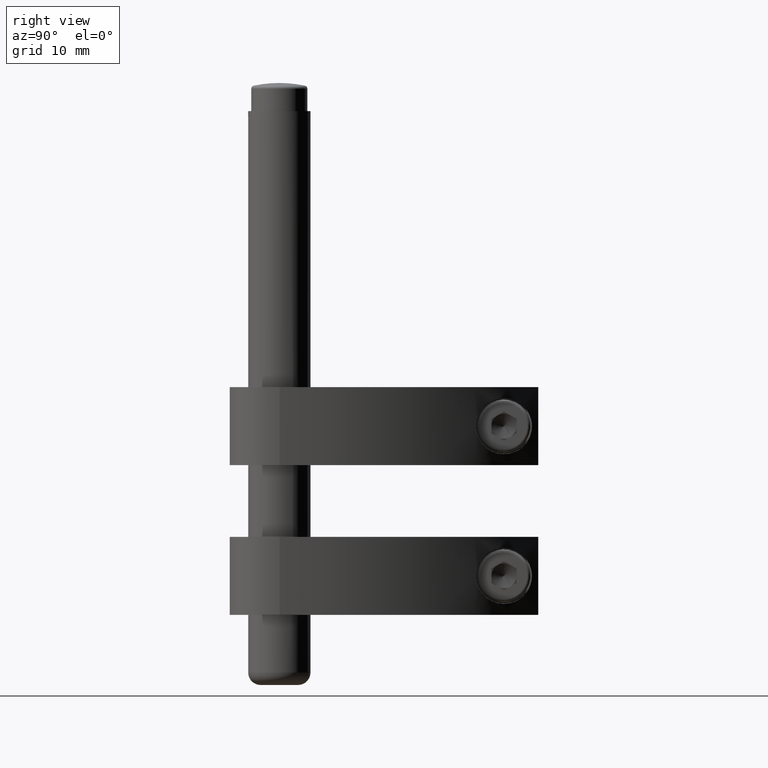
[diagram: clean part render]
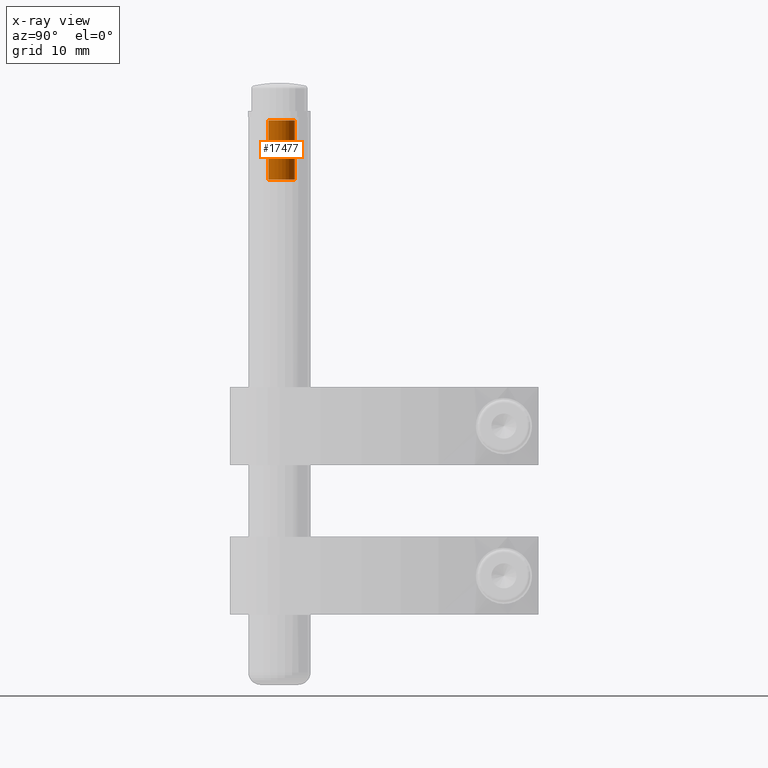
[diagram: x-ray — body ghosted, one internal face saturated and labeled with its STEP entity id]
A machine part, right view, then the same camera in x-ray: the body is ghosted and one INTERNAL B-rep face — a face not visible from any outside direction — is saturated and labeled: STEP entity #17477.
In plain terms, the highlighted cylindrical surface (edge-blend (fillet) strip) has radius 2.5 mm, axis along (0, 0, 1).
Its self-contained STEP definition (entity closure, byte-faithful):
#13 = EDGE_CURVE ( 'NONE', #4623, #516, #19, .T. ) ;
#19 = LINE ( 'NONE', #1176, #18502 ) ;
#102 = DIRECTION ( 'NONE',  ( 0.0000000000000000000, 0.0000000000000000000, -1.000000000000000000 ) ) ;
#140 = B_SPLINE_CURVE_WITH_KNOTS ( 'NONE', 3,
 ( #5299, #18702, #8612, #20378 ),
 .UNSPECIFIED., .F., .F.,
 ( 4, 4 ),
 ( 0.0003046107348551110900, 0.0003702883360055615700 ),
 .UNSPECIFIED. ) ;
#200 = CARTESIAN_POINT ( 'NONE',  ( -2.499999999999994200, 3.035766082959412400E-015, -45.50000000000000000 ) ) ;
#209 = EDGE_CURVE ( 'NONE', #6033, #12514, #21378, .T. ) ;
#243 = VECTOR ( 'NONE', #10513, 1000.000000000000000 ) ;
#310 = VERTEX_POINT ( 'NONE', #14400 ) ;
#457 = VERTEX_POINT ( 'NONE', #14902 ) ;
#502 = CARTESIAN_POINT ( 'NONE',  ( -2.499999999999994200, 3.349221213002706900E-015, -41.47419524895191500 ) ) ;
#506 = ORIENTED_EDGE ( 'NONE', *, *, #10522, .F. ) ;
#516 = VERTEX_POINT ( 'NONE', #11889 ) ;
#540 = EDGE_CURVE ( 'NONE', #10337, #9047, #2591, .T. ) ;
#557 = CARTESIAN_POINT ( 'NONE',  ( -2.499999999999994200, -0.009522370386900999600, -42.15720881813085400 ) ) ;
#598 = DIRECTION ( 'NONE',  ( 0.0000000000000000000, 0.0000000000000000000, -1.000000000000000000 ) ) ;
#689 = ORIENTED_EDGE ( 'NONE', *, *, #6411, .F. ) ;
#719 = VERTEX_POINT ( 'NONE', #3350 ) ;
#723 = EDGE_CURVE ( 'NONE', #20716, #734, #8478, .T. ) ;
#734 = VERTEX_POINT ( 'NONE', #18777 ) ;
#744 = DIRECTION ( 'NONE',  ( 0.0000000000000000000, 0.0000000000000000000, -1.000000000000000000 ) ) ;
#780 = VERTEX_POINT ( 'NONE', #12317 ) ;
#874 = LINE ( 'NONE', #1883, #13092 ) ;
#917 = VECTOR ( 'NONE', #102, 1000.000000000000000 ) ;
#1079 = CARTESIAN_POINT ( 'NONE',  ( 0.0000000000000000000, 3.035766082959412400E-015, -45.00000000000000000 ) ) ;
#1128 = ORIENTED_EDGE ( 'NONE', *, *, #21351, .F. ) ;
#1141 = VERTEX_POINT ( 'NONE', #13106 ) ;
#1176 = CARTESIAN_POINT ( 'NONE',  ( -2.499999999999994200, 3.035766082959412400E-015, -45.50000000000000000 ) ) ;
#1184 = EDGE_CURVE ( 'NONE', #18648, #457, #9216, .T. ) ;
#1200 = DIRECTION ( 'NONE',  ( 0.0000000000000000000, 0.0000000000000000000, -1.000000000000000000 ) ) ;
#1217 = DIRECTION ( 'NONE',  ( 0.0000000000000000000, 0.0000000000000000000, -1.000000000000000000 ) ) ;
#1267 = CARTESIAN_POINT ( 'NONE',  ( -2.499999999999995100, 0.0000000000000000000, -36.73239850427349800 ) ) ;
#1297 = CARTESIAN_POINT ( 'NONE',  ( -2.499999999999994200, 3.035766082959412400E-015, -45.50000000000000000 ) ) ;
#1313 = CARTESIAN_POINT ( 'NONE',  ( -2.499999999999994200, 3.035766082959412400E-015, -45.50000000000000000 ) ) ;
#1375 = CARTESIAN_POINT ( 'NONE',  ( -2.499964940134939500, -0.01324399200380717500, -43.69543661422804300 ) ) ;
#1440 = CARTESIAN_POINT ( 'NONE',  ( -2.499963179563017900, -0.01356837606837505200, -43.67315287793802300 ) ) ;
#1482 = VERTEX_POINT ( 'NONE', #18952 ) ;
#1511 = CARTESIAN_POINT ( 'NONE',  ( -2.499963179563017900, -0.01356837606837505200, -40.59005742521367900 ) ) ;
#1585 = CARTESIAN_POINT ( 'NONE',  ( -2.499999999999995100, -4.336808689942017700E-016, -39.33752670940171500 ) ) ;
#1588 = CARTESIAN_POINT ( 'NONE',  ( -2.499990794941592000, -0.006784188034182972400, -37.20506560496794900 ) ) ;
#1613 = CARTESIAN_POINT ( 'NONE',  ( 0.0000000000000000000, -1.734723475976807100E-015, -35.50000000000000700 ) ) ;
#1684 = DIRECTION ( 'NONE',  ( 0.0000000000000000000, 0.0000000000000000000, -1.000000000000000000 ) ) ;
#1693 = LINE ( 'NONE', #15242, #9366 ) ;
#1694 = B_SPLINE_CURVE_WITH_KNOTS ( 'NONE', 3,
 ( #13812, #16951, #6131, #1511 ),
 .UNSPECIFIED., .F., .F.,
 ( 4, 4 ),
 ( 0.0001839985656280152600, 0.0002508744092485979500 ),
 .UNSPECIFIED. ) ;
#1821 = VECTOR ( 'NONE', #18046, 1000.000000000000000 ) ;
#1848 = CARTESIAN_POINT ( 'NONE',  ( -2.499999999999995100, 0.0000000000000000000, -37.53971688034188500 ) ) ;
#1883 = CARTESIAN_POINT ( 'NONE',  ( -2.499999999999995100, -4.336808689942017700E-016, -45.50000000000000000 ) ) ;
#1885 = CARTESIAN_POINT ( 'NONE',  ( -2.499963179563017900, -0.01356837606837505200, -41.39578575721153400 ) ) ;
#1907 = AXIS2_PLACEMENT_3D ( 'NONE', #7401, #5997, #11075 ) ;
#1913 = ORIENTED_EDGE ( 'NONE', *, *, #16458, .F. ) ;
#2067 = ORIENTED_EDGE ( 'NONE', *, *, #6248, .F. ) ;
#2212 = LINE ( 'NONE', #5804, #5144 ) ;
#2243 = CARTESIAN_POINT ( 'NONE',  ( 2.499999999999994200, 3.341927782746249900E-015, -45.00000000000000000 ) ) ;
#2339 = CARTESIAN_POINT ( 'NONE',  ( -2.499999999999994200, -1.212853771679223800E-013, -41.05118364614948200 ) ) ;
#2513 = CARTESIAN_POINT ( 'NONE',  ( -2.499999999999994200, 5.293955920339377100E-016, -37.78252731923628000 ) ) ;
#2547 = CARTESIAN_POINT ( 'NONE',  ( -2.499999999999995100, -4.336808689942017700E-016, -43.38768696581196600 ) ) ;
#2591 = LINE ( 'NONE', #15114, #19995 ) ;
#2674 = CARTESIAN_POINT ( 'NONE',  ( -2.499999999999994200, 3.349221213002706900E-015, -41.47419524895191500 ) ) ;
#2716 = VECTOR ( 'NONE', #16861, 1000.000000000000000 ) ;
#2779 = VERTEX_POINT ( 'NONE', #13361 ) ;
#2799 = LINE ( 'NONE', #21576, #12359 ) ;
#2875 = LINE ( 'NONE', #10721, #15288 ) ;
#3018 = ORIENTED_EDGE ( 'NONE', *, *, #4851, .F. ) ;
#3082 = VERTEX_POINT ( 'NONE', #6669 ) ;
#3222 = CIRCLE ( 'NONE', #6622, 2.499999999999994200 ) ;
#3243 = ORIENTED_EDGE ( 'NONE', *, *, #1184, .F. ) ;
#3273 = CARTESIAN_POINT ( 'NONE',  ( -2.499999999999994200, -0.009918322737244992700, -41.34125796635913000 ) ) ;
#3309 = EDGE_CURVE ( 'NONE', #11755, #18170, #2799, .T. ) ;
#3324 = ORIENTED_EDGE ( 'NONE', *, *, #11339, .F. ) ;
#3343 = CARTESIAN_POINT ( 'NONE',  ( -2.499999999999995600, -2.362216071214634300E-015, -40.65752391552910400 ) ) ;
#3350 = CARTESIAN_POINT ( 'NONE',  ( 2.499999999999998200, 3.341927782746257800E-015, -35.50000000000000700 ) ) ;
#3487 = ORIENTED_EDGE ( 'NONE', *, *, #11972, .F. ) ;
#3518 = VERTEX_POINT ( 'NONE', #7220 ) ;
#3557 = VERTEX_POINT ( 'NONE', #16801 ) ;
#3577 = CARTESIAN_POINT ( 'NONE',  ( -2.499999999999993800, -0.004620592154542367400, -39.06077576060531700 ) ) ;
#3617 = VERTEX_POINT ( 'NONE', #6940 ) ;
#3628 = VECTOR ( 'NONE', #1217, 1000.000000000000000 ) ;
#3687 = ORIENTED_EDGE ( 'NONE', *, *, #20741, .F. ) ;
#3690 = CARTESIAN_POINT ( 'NONE',  ( -2.499999999999994200, 7.695294325805318600E-015, -40.52407171874975200 ) ) ;
#3838 = LINE ( 'NONE', #16587, #21241 ) ;
#3919 = VERTEX_POINT ( 'NONE', #2339 ) ;
#3956 = DIRECTION ( 'NONE',  ( 0.0000000000000000000, 0.0000000000000000000, -1.000000000000000000 ) ) ;
#3974 = B_SPLINE_CURVE_WITH_KNOTS ( 'NONE', 3,
 ( #7526, #17532, #17965, #4564 ),
 .UNSPECIFIED., .F., .F.,
 ( 4, 4 ),
 ( 0.0002614185422788305900, 0.0003150809736663434900 ),
 .UNSPECIFIED. ) ;
#3976 = LINE ( 'NONE', #11547, #15856 ) ;
#3999 = LINE ( 'NONE', #18414, #4535 ) ;
#4024 = EDGE_CURVE ( 'NONE', #21377, #4670, #6594, .T. ) ;
#4056 = CARTESIAN_POINT ( 'NONE',  ( -2.499999999999994200, 1.067876941210113800E-011, -40.92238010114189700 ) ) ;
#4132 = CARTESIAN_POINT ( 'NONE',  ( -2.500000000000033800, -0.009285707656518307400, -40.94240176013804000 ) ) ;
#4183 = DIRECTION ( 'NONE',  ( -0.0000000000000000000, -0.0000000000000000000, -1.000000000000000000 ) ) ;
#4220 = CARTESIAN_POINT ( 'NONE',  ( -2.499999999999995100, -4.336808689942017700E-016, -39.83277243589741800 ) ) ;
#4300 = CARTESIAN_POINT ( 'NONE',  ( -2.499999999999995100, 0.0000000000000000000, -38.19778311965810500 ) ) ;
#4305 = CARTESIAN_POINT ( 'NONE',  ( -2.499999999999995100, 0.0000000000000000000, -37.49222756410255600 ) ) ;
#4313 = EDGE_CURVE ( 'NONE', #719, #21599, #17560, .T. ) ;
#4324 = VECTOR ( 'NONE', #744, 1000.000000000000000 ) ;
#4414 = EDGE_CURVE ( 'NONE', #16091, #7554, #20701, .T. ) ;
#4482 = DIRECTION ( 'NONE',  ( 0.0000000000000000000, 0.0000000000000000000, -1.000000000000000000 ) ) ;
#4487 = ORIENTED_EDGE ( 'NONE', *, *, #11242, .F. ) ;
#4521 = EDGE_CURVE ( 'NONE', #13655, #3518, #15711, .T. ) ;
#4535 = VECTOR ( 'NONE', #15110, 1000.000000000000000 ) ;
#4564 = CARTESIAN_POINT ( 'NONE',  ( -2.499990794941592000, -0.006784188034186875600, -39.02354600694443600 ) ) ;
#4623 = VERTEX_POINT ( 'NONE', #17798 ) ;
#4660 = VECTOR ( 'NONE', #18638, 1000.000000000000000 ) ;
#4670 = VERTEX_POINT ( 'NONE', #19992 ) ;
#4685 = DIRECTION ( 'NONE',  ( 0.0000000000000000000, 0.0000000000000000000, -1.000000000000000000 ) ) ;
#4704 = CARTESIAN_POINT ( 'NONE',  ( -2.499967689135853100, -0.01273749063406488800, -40.61323309425962000 ) ) ;
#4723 = DIRECTION ( 'NONE',  ( 0.0000000000000000000, 0.0000000000000000000, -1.000000000000000000 ) ) ;
#4851 = EDGE_CURVE ( 'NONE', #5577, #21377, #16648, .T. ) ;
#4883 = DIRECTION ( 'NONE',  ( 0.0000000000000000000, 0.0000000000000000000, -1.000000000000000000 ) ) ;
#5064 = ORIENTED_EDGE ( 'NONE', *, *, #4521, .F. ) ;
#5082 = CARTESIAN_POINT ( 'NONE',  ( -2.499999999999992900, -5.301367458627846300E-016, -41.31621453369732700 ) ) ;
#5117 = CARTESIAN_POINT ( 'NONE',  ( -2.499999999999994200, 1.593374852903745700E-015, -42.28185516488797200 ) ) ;
#5144 = VECTOR ( 'NONE', #12456, 1000.000000000000000 ) ;
#5151 = CARTESIAN_POINT ( 'NONE',  ( -2.499999999999995600, -2.362216071214634300E-015, -40.65752391552910400 ) ) ;
#5211 = EDGE_CURVE ( 'NONE', #14714, #12902, #17197, .T. ) ;
#5299 = CARTESIAN_POINT ( 'NONE',  ( -2.499999999999994200, 7.158025244889296900E-012, -43.60891856268793300 ) ) ;
#5369 = VERTEX_POINT ( 'NONE', #8980 ) ;
#5374 = VECTOR ( 'NONE', #7152, 1000.000000000000000 ) ;
#5396 = VECTOR ( 'NONE', #7752, 1000.000000000000000 ) ;
#5400 = VERTEX_POINT ( 'NONE', #12029 ) ;
#5464 = CARTESIAN_POINT ( 'NONE',  ( -2.499963179563017900, -0.01356837606837505200, -41.39578575721153400 ) ) ;
#5548 = VECTOR ( 'NONE', #1200, 1000.000000000000000 ) ;
#5577 = VERTEX_POINT ( 'NONE', #18467 ) ;
#5593 = CARTESIAN_POINT ( 'NONE',  ( -2.499963179563017900, -0.01356837606837505200, -40.98661441639957600 ) ) ;
#5654 = B_SPLINE_CURVE_WITH_KNOTS ( 'NONE', 3,
 ( #10580, #8818, #14073, #15744 ),
 .UNSPECIFIED., .F., .F.,
 ( 4, 4 ),
 ( 0.0002614185422788869700, 0.0003150809736664003500 ),
 .UNSPECIFIED. ) ;
#5665 = DIRECTION ( 'NONE',  ( 0.0000000000000000000, 0.0000000000000000000, -1.000000000000000000 ) ) ;
#5705 = CARTESIAN_POINT ( 'NONE',  ( -2.499965219639902700, -0.01319249342256251200, -40.96436549188496200 ) ) ;
#5728 = EDGE_CURVE ( 'NONE', #6075, #8855, #2212, .T. ) ;
#5804 = CARTESIAN_POINT ( 'NONE',  ( -2.499999999999994200, 3.035766082959412400E-015, -45.50000000000000000 ) ) ;
#5813 = CARTESIAN_POINT ( 'NONE',  ( -2.499999999999995100, -0.008918106749605822200, -41.03087227328478500 ) ) ;
#5965 = VERTEX_POINT ( 'NONE', #14851 ) ;
#5967 = DIRECTION ( 'NONE',  ( 1.000000000000000000, 0.0000000000000000000, 0.0000000000000000000 ) ) ;
#5997 = DIRECTION ( 'NONE',  ( 0.0000000000000000000, 0.0000000000000000000, -1.000000000000000000 ) ) ;
#6019 = LINE ( 'NONE', #1297, #3628 ) ;
#6033 = VERTEX_POINT ( 'NONE', #8433 ) ;
#6075 = VERTEX_POINT ( 'NONE', #1848 ) ;
#6105 = CARTESIAN_POINT ( 'NONE',  ( -2.499999999999994200, -1.233645783556356700E-013, -43.73772210768793700 ) ) ;
#6131 = CARTESIAN_POINT ( 'NONE',  ( -2.499967185172819100, -0.01283034544752377300, -40.56731257729942500 ) ) ;
#6170 = DIRECTION ( 'NONE',  ( 0.0000000000000000000, 0.0000000000000000000, -1.000000000000000000 ) ) ;
#6178 = LINE ( 'NONE', #15806, #4324 ) ;
#6189 = ORIENTED_EDGE ( 'NONE', *, *, #21419, .F. ) ;
#6248 = EDGE_CURVE ( 'NONE', #5369, #4623, #14366, .T. ) ;
#6411 = EDGE_CURVE ( 'NONE', #18134, #3082, #7230, .T. ) ;
#6434 = LINE ( 'NONE', #9499, #20626 ) ;
#6517 = ORIENTED_EDGE ( 'NONE', *, *, #4024, .F. ) ;
#6527 = ORIENTED_EDGE ( 'NONE', *, *, #10400, .F. ) ;
#6564 = ORIENTED_EDGE ( 'NONE', *, *, #10774, .F. ) ;
#6594 = B_SPLINE_CURVE_WITH_KNOTS ( 'NONE', 3,
 ( #6895, #20503, #20576, #18682 ),
 .UNSPECIFIED., .F., .F.,
 ( 4, 4 ),
 ( 0.0000000000000000000, 5.769437206171376800E-005 ),
 .UNSPECIFIED. ) ;
#6611 = CARTESIAN_POINT ( 'NONE',  ( -2.499999999999994200, 3.035766082959412400E-015, -45.50000000000000000 ) ) ;
#6622 = AXIS2_PLACEMENT_3D ( 'NONE', #1079, #4183, #5967 ) ;
#6625 = VECTOR ( 'NONE', #1684, 1000.000000000000000 ) ;
#6669 = CARTESIAN_POINT ( 'NONE',  ( -2.499999999999994200, 3.184738002557762500E-015, -38.96976022521917600 ) ) ;
#6843 = DIRECTION ( 'NONE',  ( 0.0000000000000000000, 0.0000000000000000000, -1.000000000000000000 ) ) ;
#6884 = LINE ( 'NONE', #21752, #18487 ) ;
#6895 = CARTESIAN_POINT ( 'NONE',  ( -2.499990794941592000, -0.006784188034182972400, -37.20506560496794900 ) ) ;
#6940 = CARTESIAN_POINT ( 'NONE',  ( -2.499999999999995100, -4.336808689942017700E-016, -39.78528311965811100 ) ) ;
#7021 = VECTOR ( 'NONE', #3956, 1000.000000000000000 ) ;
#7122 = ORIENTED_EDGE ( 'NONE', *, *, #7239, .T. ) ;
#7139 = EDGE_CURVE ( 'NONE', #3557, #11755, #15115, .T. ) ;
#7152 = DIRECTION ( 'NONE',  ( 0.0000000000000000000, 0.0000000000000000000, -1.000000000000000000 ) ) ;
#7176 = DIRECTION ( 'NONE',  ( 0.0000000000000000000, 0.0000000000000000000, -1.000000000000000000 ) ) ;
#7220 = CARTESIAN_POINT ( 'NONE',  ( -2.499999999999995100, 0.0000000000000000000, -37.99425747863248400 ) ) ;
#7230 = LINE ( 'NONE', #15038, #2716 ) ;
#7239 = EDGE_CURVE ( 'NONE', #21599, #14370, #3222, .T. ) ;
#7276 = DIRECTION ( 'NONE',  ( 0.0000000000000000000, 0.0000000000000000000, -1.000000000000000000 ) ) ;
#7282 = CARTESIAN_POINT ( 'NONE',  ( -2.499966345133983300, -0.01298512197699818800, -42.18220646377363900 ) ) ;
#7286 = VERTEX_POINT ( 'NONE', #17730 ) ;
#7350 = CARTESIAN_POINT ( 'NONE',  ( -2.499999999999994200, 3.035766082959412400E-015, -45.50000000000000000 ) ) ;
#7401 = CARTESIAN_POINT ( 'NONE',  ( 0.0000000000000000000, 3.035766082959412400E-015, -45.50000000000000000 ) ) ;
#7504 = ORIENTED_EDGE ( 'NONE', *, *, #13843, .F. ) ;
#7514 = ORIENTED_EDGE ( 'NONE', *, *, #4313, .T. ) ;
#7526 = CARTESIAN_POINT ( 'NONE',  ( -2.499999999999994200, 3.184738002557762500E-015, -38.96976022521917600 ) ) ;
#7554 = VERTEX_POINT ( 'NONE', #3690 ) ;
#7598 = CARTESIAN_POINT ( 'NONE',  ( -2.499999999999995100, -4.336808689942017700E-016, -40.12449252136751500 ) ) ;
#7752 = DIRECTION ( 'NONE',  ( 0.0000000000000000000, 0.0000000000000000000, -1.000000000000000000 ) ) ;
#8000 = B_SPLINE_CURVE_WITH_KNOTS ( 'NONE', 3,
 ( #10039, #8430, #18744, #5117 ),
 .UNSPECIFIED., .F., .F.,
 ( 4, 4 ),
 ( 0.0000000000000000000, 7.575291422309023300E-005 ),
 .UNSPECIFIED. ) ;
#8001 = CARTESIAN_POINT ( 'NONE',  ( -2.499999999999994200, 3.035766082959412400E-015, -45.50000000000000000 ) ) ;
#8013 = EDGE_CURVE ( 'NONE', #1482, #8217, #3999, .T. ) ;
#8040 = ORIENTED_EDGE ( 'NONE', *, *, #3309, .F. ) ;
#8069 = LINE ( 'NONE', #17093, #20690 ) ;
#8157 = CARTESIAN_POINT ( 'NONE',  ( -2.499999999999995100, -4.336808689942017700E-016, -39.67673611111111100 ) ) ;
#8217 = VERTEX_POINT ( 'NONE', #10811 ) ;
#8300 = CARTESIAN_POINT ( 'NONE',  ( -2.499999999999994200, 1.593374852903745700E-015, -42.28185516488797200 ) ) ;
#8324 = CARTESIAN_POINT ( 'NONE',  ( -2.499999999999994200, -0.004620592154533447400, -37.87354285462239300 ) ) ;
#8373 = CARTESIAN_POINT ( 'NONE',  ( -2.499999999999994200, 4.297209899657879200E-015, -37.14856311026490900 ) ) ;
#8377 = ORIENTED_EDGE ( 'NONE', *, *, #15890, .F. ) ;
#8430 = CARTESIAN_POINT ( 'NONE',  ( -2.499967165707135400, -0.01283393198516483100, -42.23283201541143200 ) ) ;
#8433 = CARTESIAN_POINT ( 'NONE',  ( -2.499999999999995100, -4.336808689942017700E-016, -39.22897970085470800 ) ) ;
#8478 = B_SPLINE_CURVE_WITH_KNOTS ( 'NONE', 3,
 ( #16767, #3273, #18620, #1885 ),
 .UNSPECIFIED., .F., .F.,
 ( 4, 4 ),
 ( 0.0001890563724755993800, 0.0002695673465635340200 ),
 .UNSPECIFIED. ) ;
#8588 = B_SPLINE_CURVE_WITH_KNOTS ( 'NONE', 3,
 ( #9188, #557, #7282, #10590 ),
 .UNSPECIFIED., .F., .F.,
 ( 4, 4 ),
 ( 0.0001827985185036029800, 0.0002568959962801293400 ),
 .UNSPECIFIED. ) ;
#8609 = CARTESIAN_POINT ( 'NONE',  ( -2.499990794941592000, -0.006784188034186875600, -39.02354600694443600 ) ) ;
#8612 = CARTESIAN_POINT ( 'NONE',  ( -2.499965219639902700, -0.01319249342261411500, -43.65090395342625800 ) ) ;
#8795 = AXIS2_PLACEMENT_3D ( 'NONE', #1613, #13445, #16794 ) ;
#8818 = CARTESIAN_POINT ( 'NONE',  ( -2.499999999999994200, -0.004552398315329972200, -37.79991638520186800 ) ) ;
#8855 = VERTEX_POINT ( 'NONE', #2513 ) ;
#8892 = CARTESIAN_POINT ( 'NONE',  ( -2.499999999999994200, 3.035766082959412400E-015, -45.50000000000000000 ) ) ;
#8899 = DIRECTION ( 'NONE',  ( 0.0000000000000000000, 0.0000000000000000000, -1.000000000000000000 ) ) ;
#8980 = CARTESIAN_POINT ( 'NONE',  ( -2.499999999999995100, -4.336808689942017700E-016, -42.68213141025642400 ) ) ;
#9006 = ORIENTED_EDGE ( 'NONE', *, *, #7139, .F. ) ;
#9047 = VERTEX_POINT ( 'NONE', #14917 ) ;
#9066 = ORIENTED_EDGE ( 'NONE', *, *, #19593, .F. ) ;
#9140 = EDGE_CURVE ( 'NONE', #13757, #21859, #8000, .T. ) ;
#9188 = CARTESIAN_POINT ( 'NONE',  ( -2.499999999999995600, 4.886797770506075600E-015, -42.13398934905227100 ) ) ;
#9216 = LINE ( 'NONE', #1313, #1821 ) ;
#9366 = VECTOR ( 'NONE', #6843, 1000.000000000000000 ) ;
#9499 = CARTESIAN_POINT ( 'NONE',  ( -2.499999999999995100, -4.336808689942017700E-016, -45.50000000000000000 ) ) ;
#9503 = ORIENTED_EDGE ( 'NONE', *, *, #10036, .F. ) ;
#9580 = B_SPLINE_CURVE_WITH_KNOTS ( 'NONE', 3,
 ( #4056, #4132, #5705, #12507 ),
 .UNSPECIFIED., .F., .F.,
 ( 4, 4 ),
 ( 0.0003046107348468210600, 0.0003702883360055432400 ),
 .UNSPECIFIED. ) ;
#9818 = CARTESIAN_POINT ( 'NONE',  ( -2.499999999999994200, 3.035766082959412400E-015, -45.50000000000000000 ) ) ;
#9921 = ORIENTED_EDGE ( 'NONE', *, *, #10486, .F. ) ;
#10036 = EDGE_CURVE ( 'NONE', #734, #14288, #13576, .T. ) ;
#10039 = CARTESIAN_POINT ( 'NONE',  ( -2.499963179563017900, -0.01356837606837505200, -42.20734425080129200 ) ) ;
#10082 = CARTESIAN_POINT ( 'NONE',  ( -2.499999999999995100, -4.336808689942017700E-016, -38.67946047008545200 ) ) ;
#10111 = DIRECTION ( 'NONE',  ( 0.0000000000000000000, 0.0000000000000000000, -1.000000000000000000 ) ) ;
#10212 = VERTEX_POINT ( 'NONE', #2547 ) ;
#10220 = CARTESIAN_POINT ( 'NONE',  ( -2.499990794941592000, -0.006784188034182972400, -37.20506560496794900 ) ) ;
#10260 = CARTESIAN_POINT ( 'NONE',  ( -2.499999999999994200, -1.141262017581698300E-013, -37.89148832465268400 ) ) ;
#10281 = ORIENTED_EDGE ( 'NONE', *, *, #20356, .F. ) ;
#10337 = VERTEX_POINT ( 'NONE', #16985 ) ;
#10379 = CARTESIAN_POINT ( 'NONE',  ( -2.499999999999994200, 3.035766082959412400E-015, -45.50000000000000000 ) ) ;
#10394 = VECTOR ( 'NONE', #4685, 1000.000000000000000 ) ;
#10400 = EDGE_CURVE ( 'NONE', #19077, #14714, #140, .T. ) ;
#10448 = LINE ( 'NONE', #13630, #18351 ) ;
#10468 = CARTESIAN_POINT ( 'NONE',  ( -2.499963179563017900, -0.01356837606837505200, -42.20734425080129200 ) ) ;
#10486 = EDGE_CURVE ( 'NONE', #5400, #3919, #18122, .T. ) ;
#10513 = DIRECTION ( 'NONE',  ( 0.0000000000000000000, 0.0000000000000000000, -1.000000000000000000 ) ) ;
#10522 = EDGE_CURVE ( 'NONE', #21834, #3617, #2875, .T. ) ;
#10580 = CARTESIAN_POINT ( 'NONE',  ( -2.499999999999994200, 5.293955920339377100E-016, -37.78252731923628000 ) ) ;
#10590 = CARTESIAN_POINT ( 'NONE',  ( -2.499963179563017900, -0.01356837606837505200, -42.20734425080129200 ) ) ;
#10655 = EDGE_CURVE ( 'NONE', #17485, #7286, #13780, .T. ) ;
#10721 = CARTESIAN_POINT ( 'NONE',  ( -2.499999999999994200, 3.035766082959412400E-015, -45.50000000000000000 ) ) ;
#10774 = EDGE_CURVE ( 'NONE', #4670, #14789, #12444, .T. ) ;
#10811 = CARTESIAN_POINT ( 'NONE',  ( -2.499999999999995100, -4.336808689942017700E-016, -41.83410790598291100 ) ) ;
#10896 = ORIENTED_EDGE ( 'NONE', *, *, #4414, .F. ) ;
#11019 = B_SPLINE_CURVE_WITH_KNOTS ( 'NONE', 3,
 ( #8609, #13705, #3577, #11776 ),
 .UNSPECIFIED., .F., .F.,
 ( 4, 4 ),
 ( 0.0000000000000000000, 5.563878443950292200E-005 ),
 .UNSPECIFIED. ) ;
#11075 = DIRECTION ( 'NONE',  ( -1.000000000000000000, 0.0000000000000000000, 0.0000000000000000000 ) ) ;
#11175 = DIRECTION ( 'NONE',  ( 0.0000000000000000000, 0.0000000000000000000, -1.000000000000000000 ) ) ;
#11240 = EDGE_CURVE ( 'NONE', #21859, #5369, #14133, .T. ) ;
#11242 = EDGE_CURVE ( 'NONE', #2779, #18648, #19790, .T. ) ;
#11257 = VECTOR ( 'NONE', #12855, 1000.000000000000000 ) ;
#11339 = EDGE_CURVE ( 'NONE', #12060, #780, #11019, .T. ) ;
#11418 = CARTESIAN_POINT ( 'NONE',  ( -2.499999999999995100, 0.0000000000000000000, -36.68490918803419000 ) ) ;
#11547 = CARTESIAN_POINT ( 'NONE',  ( -2.499999999999995100, -4.336808689942017700E-016, -45.50000000000000000 ) ) ;
#11588 = CARTESIAN_POINT ( 'NONE',  ( -2.499990794941592000, -0.006784188034186875600, -39.02354600694443600 ) ) ;
#11606 = LINE ( 'NONE', #13373, #20823 ) ;
#11755 = VERTEX_POINT ( 'NONE', #11418 ) ;
#11776 = CARTESIAN_POINT ( 'NONE',  ( -2.499999999999994200, -1.166571362045656800E-013, -39.07872123063558700 ) ) ;
#11867 = CARTESIAN_POINT ( 'NONE',  ( -2.499999999999995100, -4.336808689942017700E-016, -39.62924679487179700 ) ) ;
#11889 = CARTESIAN_POINT ( 'NONE',  ( -2.499999999999995100, -4.336808689942017700E-016, -43.34019764957264400 ) ) ;
#11912 = ORIENTED_EDGE ( 'NONE', *, *, #8013, .F. ) ;
#11918 = LINE ( 'NONE', #10379, #13514 ) ;
#11972 = EDGE_CURVE ( 'NONE', #12514, #15867, #874, .T. ) ;
#12029 = CARTESIAN_POINT ( 'NONE',  ( -2.499963179563017900, -0.01356837606837505200, -40.98661441639957600 ) ) ;
#12060 = VERTEX_POINT ( 'NONE', #11588 ) ;
#12064 = ORIENTED_EDGE ( 'NONE', *, *, #20229, .F. ) ;
#12193 = VECTOR ( 'NONE', #8899, 1000.000000000000000 ) ;
#12317 = CARTESIAN_POINT ( 'NONE',  ( -2.499999999999994200, -1.166571362045656800E-013, -39.07872123063558700 ) ) ;
#12323 = CARTESIAN_POINT ( 'NONE',  ( -2.499999999999995100, -4.336808689942017700E-016, -45.50000000000000000 ) ) ;
#12359 = VECTOR ( 'NONE', #4723, 1000.000000000000000 ) ;
#12444 = LINE ( 'NONE', #6611, #5548 ) ;
#12456 = DIRECTION ( 'NONE',  ( 0.0000000000000000000, 0.0000000000000000000, -1.000000000000000000 ) ) ;
#12507 = CARTESIAN_POINT ( 'NONE',  ( -2.499963179563017900, -0.01356837606837505200, -40.98661441639957600 ) ) ;
#12514 = VERTEX_POINT ( 'NONE', #1585 ) ;
#12763 = CIRCLE ( 'NONE', #8795, 2.499999999999998200 ) ;
#12855 = DIRECTION ( 'NONE',  ( 0.0000000000000000000, 0.0000000000000000000, -1.000000000000000000 ) ) ;
#12902 = VERTEX_POINT ( 'NONE', #6105 ) ;
#12945 = EDGE_CURVE ( 'NONE', #10212, #19077, #19622, .T. ) ;
#13051 = EDGE_LOOP ( 'NONE', ( #17866, #7514, #7122, #16398, #16979, #6527, #21823, #3687, #18305, #2067, #20768, #13884, #18269, #16260, #11912, #21543, #9503, #16704, #18803, #9921, #19779, #3243, #4487, #20483, #10896, #12064, #15327, #20874, #506, #1913, #9066, #3487, #15364, #13328, #10281, #3324, #17608, #689, #14406, #19261, #13339, #15263, #8377, #19174, #6189, #5064, #1128, #17935, #18264, #7504, #6564, #6517, #3018, #16211, #8040, #9006 ) ) ;
#13092 = VECTOR ( 'NONE', #7276, 1000.000000000000000 ) ;
#13106 = CARTESIAN_POINT ( 'NONE',  ( -2.499999999999995100, -4.336808689942017700E-016, -38.41487713675212500 ) ) ;
#13214 = EDGE_CURVE ( 'NONE', #17701, #6033, #15131, .T. ) ;
#13250 = LINE ( 'NONE', #13539, #6625 ) ;
#13280 = EDGE_CURVE ( 'NONE', #5965, #20635, #6178, .T. ) ;
#13328 = ORIENTED_EDGE ( 'NONE', *, *, #13214, .F. ) ;
#13339 = ORIENTED_EDGE ( 'NONE', *, *, #18925, .F. ) ;
#13361 = CARTESIAN_POINT ( 'NONE',  ( -2.499963179563017900, -0.01356837606837505200, -40.59005742521367900 ) ) ;
#13373 = CARTESIAN_POINT ( 'NONE',  ( -2.499999999999995100, -4.336808689942017700E-016, -45.50000000000000000 ) ) ;
#13445 = DIRECTION ( 'NONE',  ( 0.0000000000000000000, 0.0000000000000000000, -1.000000000000000000 ) ) ;
#13480 = DIRECTION ( 'NONE',  ( 0.0000000000000000000, 0.0000000000000000000, -1.000000000000000000 ) ) ;
#13488 = EDGE_CURVE ( 'NONE', #12902, #14370, #21704, .T. ) ;
#13494 = CARTESIAN_POINT ( 'NONE',  ( -2.499999999999994200, -0.009090271957486094300, -40.63617191880388900 ) ) ;
#13514 = VECTOR ( 'NONE', #17452, 1000.000000000000000 ) ;
#13539 = CARTESIAN_POINT ( 'NONE',  ( -2.499999999999995100, -4.336808689942017700E-016, -45.50000000000000000 ) ) ;
#13576 = B_SPLINE_CURVE_WITH_KNOTS ( 'NONE', 3,
 ( #5464, #17388, #19027, #502 ),
 .UNSPECIFIED., .F., .F.,
 ( 4, 4 ),
 ( 0.0000000000000000000, 8.029867034703270700E-005 ),
 .UNSPECIFIED. ) ;
#13597 = EDGE_CURVE ( 'NONE', #719, #3557, #12763, .T. ) ;
#13630 = CARTESIAN_POINT ( 'NONE',  ( -2.499999999999994200, 3.035766082959412400E-015, -45.50000000000000000 ) ) ;
#13655 = VERTEX_POINT ( 'NONE', #10260 ) ;
#13705 = CARTESIAN_POINT ( 'NONE',  ( -2.499991970654527500, -0.006350934783916176700, -39.04213943671320000 ) ) ;
#13735 = DIRECTION ( 'NONE',  ( 0.0000000000000000000, 0.0000000000000000000, -1.000000000000000000 ) ) ;
#13738 = DIRECTION ( 'NONE',  ( 0.0000000000000000000, 0.0000000000000000000, -1.000000000000000000 ) ) ;
#13757 = VERTEX_POINT ( 'NONE', #10468 ) ;
#13780 = LINE ( 'NONE', #16319, #21369 ) ;
#13812 = CARTESIAN_POINT ( 'NONE',  ( -2.499999999999994200, 7.695294325805318600E-015, -40.52407171874975200 ) ) ;
#13842 = EDGE_CURVE ( 'NONE', #3082, #12060, #3974, .T. ) ;
#13843 = EDGE_CURVE ( 'NONE', #14789, #6075, #6434, .T. ) ;
#13884 = ORIENTED_EDGE ( 'NONE', *, *, #9140, .F. ) ;
#13970 = CYLINDRICAL_SURFACE ( 'NONE', #1907, 2.499999999999994200 ) ;
#13974 = CARTESIAN_POINT ( 'NONE',  ( -2.499999999999994200, 3.035766082959412400E-015, -45.50000000000000000 ) ) ;
#14068 = VERTEX_POINT ( 'NONE', #11867 ) ;
#14073 = CARTESIAN_POINT ( 'NONE',  ( -2.499992131738088700, -0.006291575076169171400, -37.81816989933788900 ) ) ;
#14100 = VECTOR ( 'NONE', #4883, 1000.000000000000000 ) ;
#14133 = LINE ( 'NONE', #20226, #17772 ) ;
#14224 = EDGE_CURVE ( 'NONE', #310, #13757, #8588, .T. ) ;
#14288 = VERTEX_POINT ( 'NONE', #2674 ) ;
#14366 = LINE ( 'NONE', #15864, #5396 ) ;
#14370 = VERTEX_POINT ( 'NONE', #21388 ) ;
#14400 = CARTESIAN_POINT ( 'NONE',  ( -2.499999999999995600, 4.886797770506075600E-015, -42.13398934905227100 ) ) ;
#14406 = ORIENTED_EDGE ( 'NONE', *, *, #15434, .F. ) ;
#14605 = VECTOR ( 'NONE', #598, 1000.000000000000000 ) ;
#14714 = VERTEX_POINT ( 'NONE', #16094 ) ;
#14789 = VERTEX_POINT ( 'NONE', #4305 ) ;
#14851 = CARTESIAN_POINT ( 'NONE',  ( -2.499999999999995100, -4.336808689942017700E-016, -38.46236645299144600 ) ) ;
#14889 = CARTESIAN_POINT ( 'NONE',  ( -2.499999999999993800, -0.008918106749577070800, -43.71741073482321100 ) ) ;
#14902 = CARTESIAN_POINT ( 'NONE',  ( -2.499999999999994200, 1.067876941210113800E-011, -40.92238010114189700 ) ) ;
#14917 = CARTESIAN_POINT ( 'NONE',  ( -2.499999999999995100, 0.0000000000000000000, -38.15029380341879100 ) ) ;
#14990 = EDGE_CURVE ( 'NONE', #14288, #1482, #11918, .T. ) ;
#15031 = CARTESIAN_POINT ( 'NONE',  ( -2.499990794941592000, -0.006784188034182972400, -37.83631310096154000 ) ) ;
#15038 = CARTESIAN_POINT ( 'NONE',  ( -2.499999999999994200, 3.035766082959412400E-015, -45.50000000000000000 ) ) ;
#15110 = DIRECTION ( 'NONE',  ( 0.0000000000000000000, 0.0000000000000000000, -1.000000000000000000 ) ) ;
#15114 = CARTESIAN_POINT ( 'NONE',  ( -2.499999999999994200, 3.035766082959412400E-015, -45.50000000000000000 ) ) ;
#15115 = LINE ( 'NONE', #200, #5374 ) ;
#15131 = LINE ( 'NONE', #19119, #14605 ) ;
#15153 = CARTESIAN_POINT ( 'NONE',  ( -2.499992000562524900, -0.006339913609856574100, -37.18603405572084600 ) ) ;
#15242 = CARTESIAN_POINT ( 'NONE',  ( -2.499999999999994200, 3.035766082959412400E-015, -45.50000000000000000 ) ) ;
#15263 = ORIENTED_EDGE ( 'NONE', *, *, #19998, .F. ) ;
#15288 = VECTOR ( 'NONE', #5665, 1000.000000000000000 ) ;
#15292 = CARTESIAN_POINT ( 'NONE',  ( -2.499990794941592000, -0.006784188034182972400, -37.83631310096154000 ) ) ;
#15319 = CARTESIAN_POINT ( 'NONE',  ( -2.499999999999994200, -1.141262017581698300E-013, -37.89148832465268400 ) ) ;
#15327 = ORIENTED_EDGE ( 'NONE', *, *, #10655, .F. ) ;
#15364 = ORIENTED_EDGE ( 'NONE', *, *, #209, .F. ) ;
#15434 = EDGE_CURVE ( 'NONE', #20635, #18134, #6884, .T. ) ;
#15691 = VERTEX_POINT ( 'NONE', #4300 ) ;
#15711 = LINE ( 'NONE', #17589, #7021 ) ;
#15744 = CARTESIAN_POINT ( 'NONE',  ( -2.499990794941592000, -0.006784188034182972400, -37.83631310096154000 ) ) ;
#15746 = CARTESIAN_POINT ( 'NONE',  ( -2.499964940134939500, -0.01324399200380773800, -41.00889815268958900 ) ) ;
#15806 = CARTESIAN_POINT ( 'NONE',  ( -2.499999999999994200, 3.035766082959412400E-015, -45.50000000000000000 ) ) ;
#15839 = LINE ( 'NONE', #8892, #243 ) ;
#15856 = VECTOR ( 'NONE', #13480, 1000.000000000000000 ) ;
#15864 = CARTESIAN_POINT ( 'NONE',  ( -2.499999999999995100, -4.336808689942017700E-016, -45.50000000000000000 ) ) ;
#15867 = VERTEX_POINT ( 'NONE', #16591 ) ;
#15890 = EDGE_CURVE ( 'NONE', #9047, #15691, #13250, .T. ) ;
#16013 = EDGE_CURVE ( 'NONE', #7554, #2779, #1694, .T. ) ;
#16091 = VERTEX_POINT ( 'NONE', #7598 ) ;
#16094 = CARTESIAN_POINT ( 'NONE',  ( -2.499963179563017900, -0.01356837606837505200, -43.67315287793802300 ) ) ;
#16141 = CARTESIAN_POINT ( 'NONE',  ( 2.499999999999994200, 3.341927782746249900E-015, -45.50000000000000000 ) ) ;
#16211 = ORIENTED_EDGE ( 'NONE', *, *, #16291, .F. ) ;
#16260 = ORIENTED_EDGE ( 'NONE', *, *, #20774, .F. ) ;
#16291 = EDGE_CURVE ( 'NONE', #18170, #5577, #15839, .T. ) ;
#16304 = CARTESIAN_POINT ( 'NONE',  ( -2.499999999999995100, -4.336808689942017700E-016, -38.72694978632476600 ) ) ;
#16314 = CARTESIAN_POINT ( 'NONE',  ( -2.499999999999995100, -4.336808689942017700E-016, -45.50000000000000000 ) ) ;
#16319 = CARTESIAN_POINT ( 'NONE',  ( -2.499999999999994200, 3.035766082959412400E-015, -45.50000000000000000 ) ) ;
#16398 = ORIENTED_EDGE ( 'NONE', *, *, #13488, .F. ) ;
#16410 = CARTESIAN_POINT ( 'NONE',  ( -2.499963179563017900, -0.01356837606837505200, -40.59005742521367900 ) ) ;
#16458 = EDGE_CURVE ( 'NONE', #14068, #21834, #11606, .T. ) ;
#16587 = CARTESIAN_POINT ( 'NONE',  ( -2.499999999999995100, -4.336808689942017700E-016, -45.50000000000000000 ) ) ;
#16591 = CARTESIAN_POINT ( 'NONE',  ( -2.499999999999995100, -4.336808689942017700E-016, -39.38501602564103600 ) ) ;
#16648 = B_SPLINE_CURVE_WITH_KNOTS ( 'NONE', 3,
 ( #8373, #16907, #15153, #10220 ),
 .UNSPECIFIED., .F., .F.,
 ( 4, 4 ),
 ( 0.0002528703150020215200, 0.0003093176346941868900 ),
 .UNSPECIFIED. ) ;
#16702 = CARTESIAN_POINT ( 'NONE',  ( -2.499991970654527500, -0.006350934783912081000, -37.85490653073030400 ) ) ;
#16704 = ORIENTED_EDGE ( 'NONE', *, *, #723, .F. ) ;
#16750 = DIRECTION ( 'NONE',  ( 0.0000000000000000000, 0.0000000000000000000, -1.000000000000000000 ) ) ;
#16767 = CARTESIAN_POINT ( 'NONE',  ( -2.499999999999992900, -5.301367458627846300E-016, -41.31621453369732700 ) ) ;
#16794 = DIRECTION ( 'NONE',  ( -1.000000000000000000, 0.0000000000000000000, 0.0000000000000000000 ) ) ;
#16795 = CARTESIAN_POINT ( 'NONE',  ( -2.499999999999995100, -4.336808689942017700E-016, -39.18149038461538000 ) ) ;
#16801 = CARTESIAN_POINT ( 'NONE',  ( -2.499999999999998200, -1.734723475976807100E-015, -35.50000000000000700 ) ) ;
#16861 = DIRECTION ( 'NONE',  ( 0.0000000000000000000, 0.0000000000000000000, -1.000000000000000000 ) ) ;
#16863 = CARTESIAN_POINT ( 'NONE',  ( -2.499999999999994200, 3.035766082959412400E-015, -45.50000000000000000 ) ) ;
#16904 = VECTOR ( 'NONE', #7176, 1000.000000000000000 ) ;
#16907 = CARTESIAN_POINT ( 'NONE',  ( -2.499999999999994200, -0.004775890742763017400, -37.16693355845770000 ) ) ;
#16951 = CARTESIAN_POINT ( 'NONE',  ( -2.499999999999994200, -0.009051939863046634300, -40.54480283664968000 ) ) ;
#16979 = ORIENTED_EDGE ( 'NONE', *, *, #5211, .F. ) ;
#16985 = CARTESIAN_POINT ( 'NONE',  ( -2.499999999999995100, 0.0000000000000000000, -38.04174679487179100 ) ) ;
#17073 = EDGE_CURVE ( 'NONE', #8855, #21146, #5654, .T. ) ;
#17093 = CARTESIAN_POINT ( 'NONE',  ( -2.499999999999994200, 3.035766082959412400E-015, -45.50000000000000000 ) ) ;
#17197 = B_SPLINE_CURVE_WITH_KNOTS ( 'NONE', 3,
 ( #1440, #1375, #14889, #19946 ),
 .UNSPECIFIED., .F., .F.,
 ( 4, 4 ),
 ( 0.0000000000000000000, 6.607022247427432300E-005 ),
 .UNSPECIFIED. ) ;
#17360 = CARTESIAN_POINT ( 'NONE',  ( -2.499999999999994200, -1.212853771679223800E-013, -41.05118364614948200 ) ) ;
#17388 = CARTESIAN_POINT ( 'NONE',  ( -2.499966999654031200, -0.01286452714588464400, -41.42257526563749100 ) ) ;
#17452 = DIRECTION ( 'NONE',  ( 0.0000000000000000000, 0.0000000000000000000, -1.000000000000000000 ) ) ;
#17477 = ADVANCED_FACE ( 'NONE', ( #19481 ), #13970, .F. ) ;
#17485 = VERTEX_POINT ( 'NONE', #4220 ) ;
#17532 = CARTESIAN_POINT ( 'NONE',  ( -2.499999999999994200, -0.004552398315332925600, -38.98714929118477100 ) ) ;
#17560 = LINE ( 'NONE', #16141, #11257 ) ;
#17589 = CARTESIAN_POINT ( 'NONE',  ( -2.499999999999994200, 3.035766082959412400E-015, -45.50000000000000000 ) ) ;
#17608 = ORIENTED_EDGE ( 'NONE', *, *, #13842, .F. ) ;
#17652 = B_SPLINE_CURVE_WITH_KNOTS ( 'NONE', 3,
 ( #15031, #16702, #8324, #15319 ),
 .UNSPECIFIED., .F., .F.,
 ( 4, 4 ),
 ( 0.0000000000000000000, 5.563878443950179800E-005 ),
 .UNSPECIFIED. ) ;
#17701 = VERTEX_POINT ( 'NONE', #16795 ) ;
#17730 = CARTESIAN_POINT ( 'NONE',  ( -2.499999999999995100, -4.336808689942017700E-016, -40.07700320512819300 ) ) ;
#17772 = VECTOR ( 'NONE', #18699, 1000.000000000000000 ) ;
#17798 = CARTESIAN_POINT ( 'NONE',  ( -2.499999999999995100, -4.336808689942017700E-016, -43.04169337606838800 ) ) ;
#17866 = ORIENTED_EDGE ( 'NONE', *, *, #13597, .F. ) ;
#17902 = DIRECTION ( 'NONE',  ( 0.0000000000000000000, 0.0000000000000000000, -1.000000000000000000 ) ) ;
#17935 = ORIENTED_EDGE ( 'NONE', *, *, #17073, .F. ) ;
#17944 = LINE ( 'NONE', #12323, #12193 ) ;
#17965 = CARTESIAN_POINT ( 'NONE',  ( -2.499992131738088700, -0.006291575076173101500, -39.00540280532079200 ) ) ;
#18046 = DIRECTION ( 'NONE',  ( 0.0000000000000000000, 0.0000000000000000000, -1.000000000000000000 ) ) ;
#18117 = LINE ( 'NONE', #16314, #19181 ) ;
#18122 = B_SPLINE_CURVE_WITH_KNOTS ( 'NONE', 3,
 ( #5593, #15746, #5813, #17360 ),
 .UNSPECIFIED., .F., .F.,
 ( 4, 4 ),
 ( 0.0000000000000000000, 6.607022247428390500E-005 ),
 .UNSPECIFIED. ) ;
#18134 = VERTEX_POINT ( 'NONE', #16304 ) ;
#18170 = VERTEX_POINT ( 'NONE', #1267 ) ;
#18264 = ORIENTED_EDGE ( 'NONE', *, *, #5728, .F. ) ;
#18269 = ORIENTED_EDGE ( 'NONE', *, *, #14224, .F. ) ;
#18305 = ORIENTED_EDGE ( 'NONE', *, *, #13, .F. ) ;
#18351 = VECTOR ( 'NONE', #20369, 1000.000000000000000 ) ;
#18396 = EDGE_CURVE ( 'NONE', #457, #5400, #9580, .T. ) ;
#18414 = CARTESIAN_POINT ( 'NONE',  ( -2.499999999999995100, -4.336808689942017700E-016, -45.50000000000000000 ) ) ;
#18463 = EDGE_CURVE ( 'NONE', #3919, #20716, #6019, .T. ) ;
#18467 = CARTESIAN_POINT ( 'NONE',  ( -2.499999999999994200, 4.297209899657879200E-015, -37.14856311026490900 ) ) ;
#18487 = VECTOR ( 'NONE', #16750, 1000.000000000000000 ) ;
#18502 = VECTOR ( 'NONE', #17902, 1000.000000000000000 ) ;
#18620 = CARTESIAN_POINT ( 'NONE',  ( -2.499966785142606200, -0.01290405071612173900, -41.36868572824588600 ) ) ;
#18621 = CARTESIAN_POINT ( 'NONE',  ( -2.499999999999995100, -4.336808689942017700E-016, -45.50000000000000000 ) ) ;
#18638 = DIRECTION ( 'NONE',  ( 0.0000000000000000000, 0.0000000000000000000, -1.000000000000000000 ) ) ;
#18648 = VERTEX_POINT ( 'NONE', #3343 ) ;
#18682 = CARTESIAN_POINT ( 'NONE',  ( -2.499999999999994200, 7.111896710701999500E-012, -37.26240189309604700 ) ) ;
#18699 = DIRECTION ( 'NONE',  ( 0.0000000000000000000, 0.0000000000000000000, -1.000000000000000000 ) ) ;
#18702 = CARTESIAN_POINT ( 'NONE',  ( -2.500000000000020900, -0.009285707657722278400, -43.62894022168228500 ) ) ;
#18744 = CARTESIAN_POINT ( 'NONE',  ( -2.499999999999994200, -0.009410688985871790800, -42.25808637072918800 ) ) ;
#18777 = CARTESIAN_POINT ( 'NONE',  ( -2.499963179563017900, -0.01356837606837505200, -41.39578575721153400 ) ) ;
#18803 = ORIENTED_EDGE ( 'NONE', *, *, #18463, .F. ) ;
#18925 = EDGE_CURVE ( 'NONE', #1141, #5965, #18117, .T. ) ;
#18952 = CARTESIAN_POINT ( 'NONE',  ( -2.499999999999995100, -4.336808689942017700E-016, -41.78661858974358300 ) ) ;
#19027 = CARTESIAN_POINT ( 'NONE',  ( -2.499999999999994200, -0.009729935415925298000, -41.44954671209816900 ) ) ;
#19077 = VERTEX_POINT ( 'NONE', #21680 ) ;
#19119 = CARTESIAN_POINT ( 'NONE',  ( -2.499999999999995100, -4.336808689942017700E-016, -45.50000000000000000 ) ) ;
#19174 = ORIENTED_EDGE ( 'NONE', *, *, #540, .F. ) ;
#19181 = VECTOR ( 'NONE', #6170, 1000.000000000000000 ) ;
#19261 = ORIENTED_EDGE ( 'NONE', *, *, #13280, .F. ) ;
#19384 = LINE ( 'NONE', #18621, #917 ) ;
#19481 = FACE_OUTER_BOUND ( 'NONE', #13051, .T. ) ;
#19593 = EDGE_CURVE ( 'NONE', #15867, #14068, #20727, .T. ) ;
#19622 = LINE ( 'NONE', #8001, #10394 ) ;
#19779 = ORIENTED_EDGE ( 'NONE', *, *, #18396, .F. ) ;
#19790 = B_SPLINE_CURVE_WITH_KNOTS ( 'NONE', 3,
 ( #16410, #4704, #13494, #5151 ),
 .UNSPECIFIED., .F., .F.,
 ( 4, 4 ),
 ( 0.0000000000000000000, 6.884796305169289000E-005 ),
 .UNSPECIFIED. ) ;
#19916 = VECTOR ( 'NONE', #13735, 1000.000000000000000 ) ;
#19946 = CARTESIAN_POINT ( 'NONE',  ( -2.499999999999994200, -1.233645783556356700E-013, -43.73772210768793700 ) ) ;
#19992 = CARTESIAN_POINT ( 'NONE',  ( -2.499999999999994200, 7.111896710701999500E-012, -37.26240189309604700 ) ) ;
#19995 = VECTOR ( 'NONE', #21660, 1000.000000000000000 ) ;
#19998 = EDGE_CURVE ( 'NONE', #15691, #1141, #10448, .T. ) ;
#20029 = DIRECTION ( 'NONE',  ( 0.0000000000000000000, 0.0000000000000000000, -1.000000000000000000 ) ) ;
#20226 = CARTESIAN_POINT ( 'NONE',  ( -2.499999999999994200, 3.035766082959412400E-015, -45.50000000000000000 ) ) ;
#20229 = EDGE_CURVE ( 'NONE', #7286, #16091, #3838, .T. ) ;
#20356 = EDGE_CURVE ( 'NONE', #780, #17701, #8069, .T. ) ;
#20369 = DIRECTION ( 'NONE',  ( 0.0000000000000000000, 0.0000000000000000000, -1.000000000000000000 ) ) ;
#20378 = CARTESIAN_POINT ( 'NONE',  ( -2.499963179563017900, -0.01356837606837505200, -43.67315287793802300 ) ) ;
#20483 = ORIENTED_EDGE ( 'NONE', *, *, #16013, .F. ) ;
#20503 = CARTESIAN_POINT ( 'NONE',  ( -2.499991859277942700, -0.006391977342874158800, -37.22447142903845200 ) ) ;
#20576 = CARTESIAN_POINT ( 'NONE',  ( -2.500000000000008400, -0.004828000939932545700, -37.24369311878229600 ) ) ;
#20626 = VECTOR ( 'NONE', #4482, 1000.000000000000000 ) ;
#20635 = VERTEX_POINT ( 'NONE', #10082 ) ;
#20690 = VECTOR ( 'NONE', #13738, 1000.000000000000000 ) ;
#20701 = LINE ( 'NONE', #7350, #19916 ) ;
#20716 = VERTEX_POINT ( 'NONE', #5082 ) ;
#20727 = LINE ( 'NONE', #16863, #4660 ) ;
#20741 = EDGE_CURVE ( 'NONE', #516, #10212, #19384, .T. ) ;
#20768 = ORIENTED_EDGE ( 'NONE', *, *, #11240, .F. ) ;
#20774 = EDGE_CURVE ( 'NONE', #8217, #310, #1693, .T. ) ;
#20823 = VECTOR ( 'NONE', #20029, 1000.000000000000000 ) ;
#20874 = ORIENTED_EDGE ( 'NONE', *, *, #20961, .F. ) ;
#20961 = EDGE_CURVE ( 'NONE', #3617, #17485, #3976, .T. ) ;
#21146 = VERTEX_POINT ( 'NONE', #15292 ) ;
#21241 = VECTOR ( 'NONE', #10111, 1000.000000000000000 ) ;
#21351 = EDGE_CURVE ( 'NONE', #21146, #13655, #17652, .T. ) ;
#21369 = VECTOR ( 'NONE', #11175, 1000.000000000000000 ) ;
#21377 = VERTEX_POINT ( 'NONE', #1588 ) ;
#21378 = LINE ( 'NONE', #13974, #16904 ) ;
#21388 = CARTESIAN_POINT ( 'NONE',  ( -2.499999999999994200, 3.035766082959412400E-015, -45.00000000000000000 ) ) ;
#21419 = EDGE_CURVE ( 'NONE', #3518, #10337, #17944, .T. ) ;
#21543 = ORIENTED_EDGE ( 'NONE', *, *, #14990, .F. ) ;
#21576 = CARTESIAN_POINT ( 'NONE',  ( -2.499999999999995100, -4.336808689942017700E-016, -45.50000000000000000 ) ) ;
#21599 = VERTEX_POINT ( 'NONE', #2243 ) ;
#21660 = DIRECTION ( 'NONE',  ( 0.0000000000000000000, 0.0000000000000000000, -1.000000000000000000 ) ) ;
#21680 = CARTESIAN_POINT ( 'NONE',  ( -2.499999999999994200, 7.158025244889296900E-012, -43.60891856268793300 ) ) ;
#21704 = LINE ( 'NONE', #9818, #14100 ) ;
#21752 = CARTESIAN_POINT ( 'NONE',  ( -2.499999999999995100, -4.336808689942017700E-016, -45.50000000000000000 ) ) ;
#21823 = ORIENTED_EDGE ( 'NONE', *, *, #12945, .F. ) ;
#21834 = VERTEX_POINT ( 'NONE', #8157 ) ;
#21859 = VERTEX_POINT ( 'NONE', #8300 ) ;